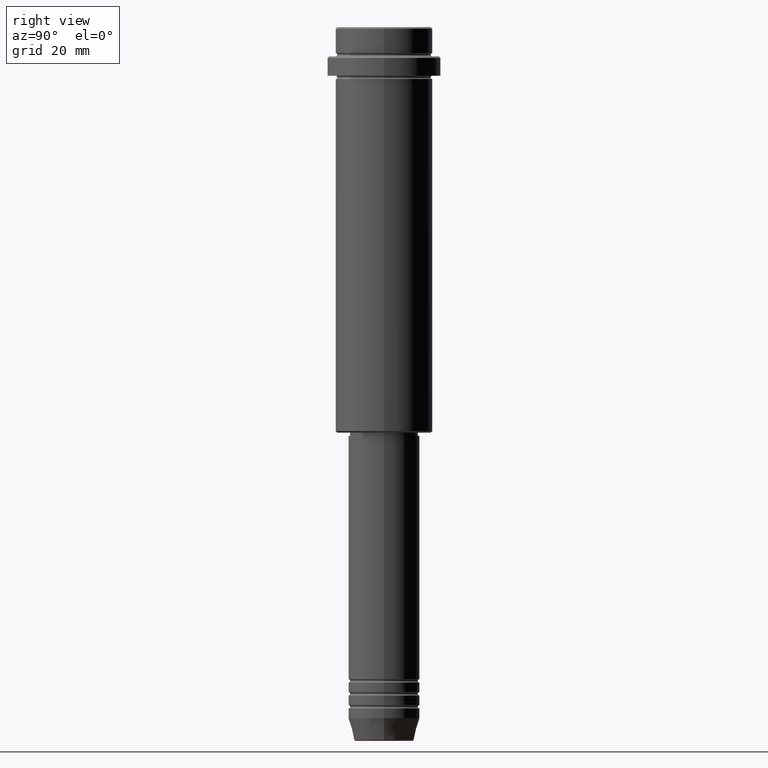
[diagram: clean part render]
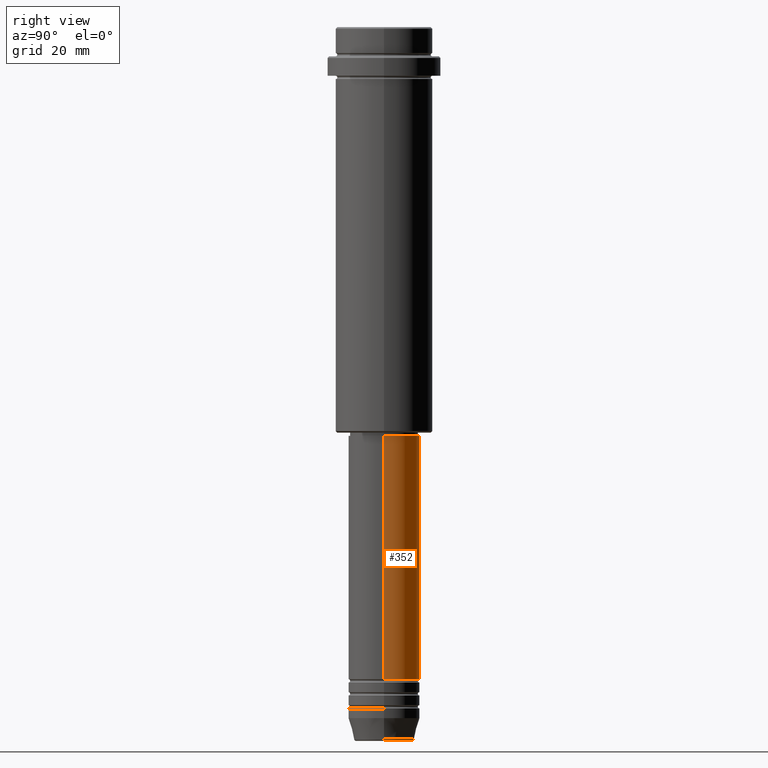
[diagram: same view with one face highlighted and labeled with its STEP entity id]
A machine part, right view. The second image highlights one B-rep face of the part: STEP entity #352.
In plain terms, the highlighted cylindrical surface (edge-blend (fillet) strip) has radius 11 mm, axis along (-0, -0, 1).
Its self-contained STEP definition (entity closure, byte-faithful):
#26 = CARTESIAN_POINT ( 'NONE',  ( 11.00000000000000000, 0.000000000000000000, -200.9999999999999147 ) ) ;
#34 = EDGE_LOOP ( 'NONE', ( #239, #526, #620, #1178 ) ) ;
#38 = DIRECTION ( 'NONE',  ( -0.000000000000000000, -0.000000000000000000, 1.000000000000000000 ) ) ;
#119 = VECTOR ( 'NONE', #1144, 1000.000000000000000 ) ;
#163 = DIRECTION ( 'NONE',  ( -0.000000000000000000, -0.000000000000000000, 1.000000000000000000 ) ) ;
#203 = FACE_OUTER_BOUND ( 'NONE', #34, .T. ) ;
#239 = ORIENTED_EDGE ( 'NONE', *, *, #1354, .T. ) ;
#257 = CARTESIAN_POINT ( 'NONE',  ( -11.00000000000000000, 1.347111479062088405E-15, -200.9999999999999147 ) ) ;
#291 = CARTESIAN_POINT ( 'NONE',  ( -11.00000000000000000, 1.347111479062088405E-15, 0.000000000000000000 ) ) ;
#343 = AXIS2_PLACEMENT_3D ( 'NONE', #476, #355, #465 ) ;
#352 = ADVANCED_FACE ( 'NONE', ( #203 ), #1174, .T. ) ;
#355 = DIRECTION ( 'NONE',  ( -0.000000000000000000, -0.000000000000000000, 1.000000000000000000 ) ) ;
#360 = CIRCLE ( 'NONE', #1415, 10.99999999999999822 ) ;
#380 = VERTEX_POINT ( 'NONE', #1380 ) ;
#425 = CARTESIAN_POINT ( 'NONE',  ( 0.000000000000000000, 0.000000000000000000, 0.000000000000000000 ) ) ;
#434 = VECTOR ( 'NONE', #163, 1000.000000000000000 ) ;
#460 = EDGE_CURVE ( 'NONE', #542, #1229, #1048, .T. ) ;
#465 = DIRECTION ( 'NONE',  ( 1.000000000000000000, 0.000000000000000000, 0.000000000000000000 ) ) ;
#476 = CARTESIAN_POINT ( 'NONE',  ( 0.000000000000000000, 0.000000000000000000, -200.9999999999999147 ) ) ;
#485 = DIRECTION ( 'NONE',  ( 1.000000000000000000, 0.000000000000000000, 0.000000000000000000 ) ) ;
#526 = ORIENTED_EDGE ( 'NONE', *, *, #460, .T. ) ;
#542 = VERTEX_POINT ( 'NONE', #257 ) ;
#543 = EDGE_CURVE ( 'NONE', #989, #380, #958, .T. ) ;
#579 = CIRCLE ( 'NONE', #343, 11.00000000000000000 ) ;
#620 = ORIENTED_EDGE ( 'NONE', *, *, #867, .F. ) ;
#712 = CARTESIAN_POINT ( 'NONE',  ( 11.00000000000000000, 0.000000000000000000, 0.000000000000000000 ) ) ;
#823 = AXIS2_PLACEMENT_3D ( 'NONE', #425, #1089, #870 ) ;
#867 = EDGE_CURVE ( 'NONE', #380, #1229, #360, .T. ) ;
#870 = DIRECTION ( 'NONE',  ( 1.000000000000000000, 0.000000000000000000, 0.000000000000000000 ) ) ;
#958 = LINE ( 'NONE', #712, #119 ) ;
#989 = VERTEX_POINT ( 'NONE', #26 ) ;
#1031 = CARTESIAN_POINT ( 'NONE',  ( 0.000000000000000000, 0.000000000000000000, -126.0000000000000000 ) ) ;
#1048 = LINE ( 'NONE', #291, #434 ) ;
#1089 = DIRECTION ( 'NONE',  ( -0.000000000000000000, -0.000000000000000000, 1.000000000000000000 ) ) ;
#1096 = CARTESIAN_POINT ( 'NONE',  ( -10.99999999999999822, 1.347111479062088207E-15, -126.0000000000000000 ) ) ;
#1144 = DIRECTION ( 'NONE',  ( -0.000000000000000000, -0.000000000000000000, 1.000000000000000000 ) ) ;
#1174 = CYLINDRICAL_SURFACE ( 'NONE', #823, 11.00000000000000000 ) ;
#1178 = ORIENTED_EDGE ( 'NONE', *, *, #543, .F. ) ;
#1229 = VERTEX_POINT ( 'NONE', #1096 ) ;
#1354 = EDGE_CURVE ( 'NONE', #989, #542, #579, .T. ) ;
#1380 = CARTESIAN_POINT ( 'NONE',  ( 10.99999999999999822, 0.000000000000000000, -126.0000000000000000 ) ) ;
#1415 = AXIS2_PLACEMENT_3D ( 'NONE', #1031, #38, #485 ) ;